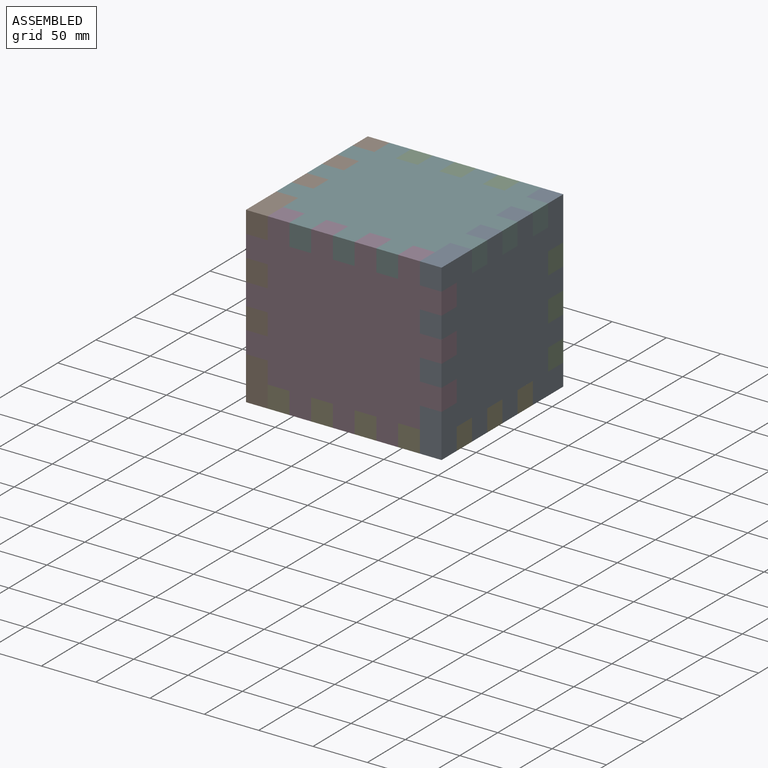
[diagram: assembled view]
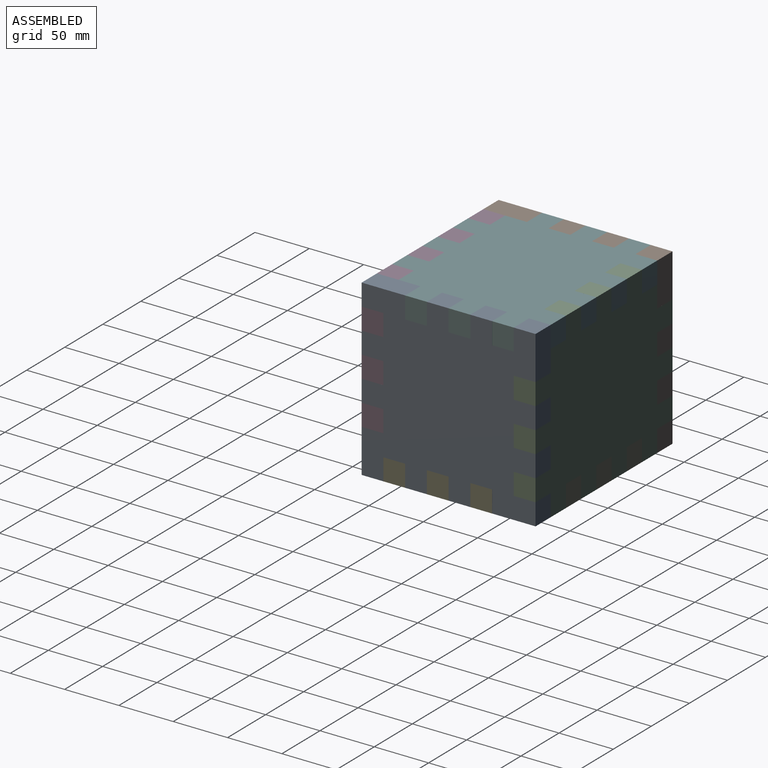
[diagram: assembled view, second angle]
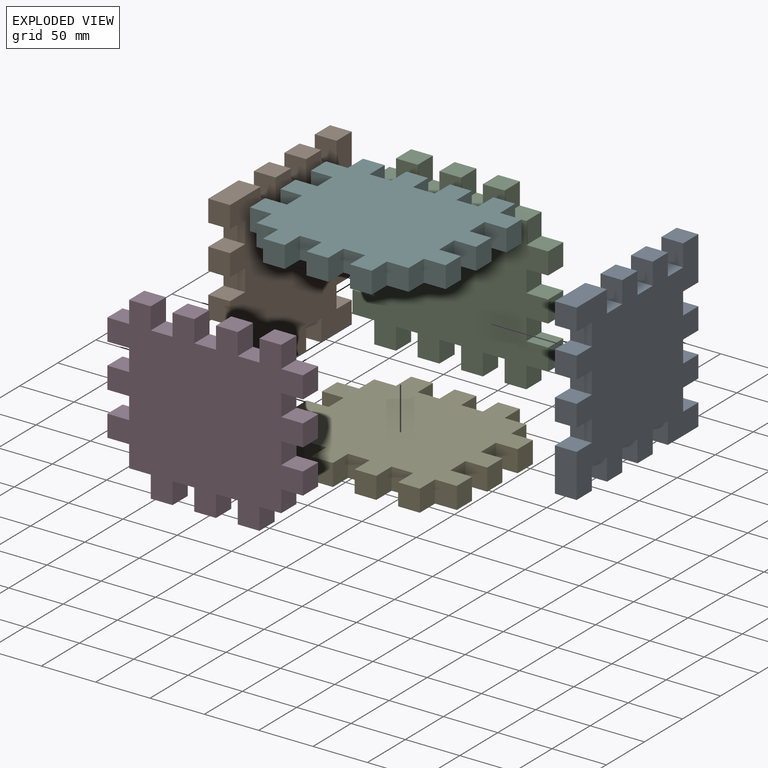
[diagram: exploded view]
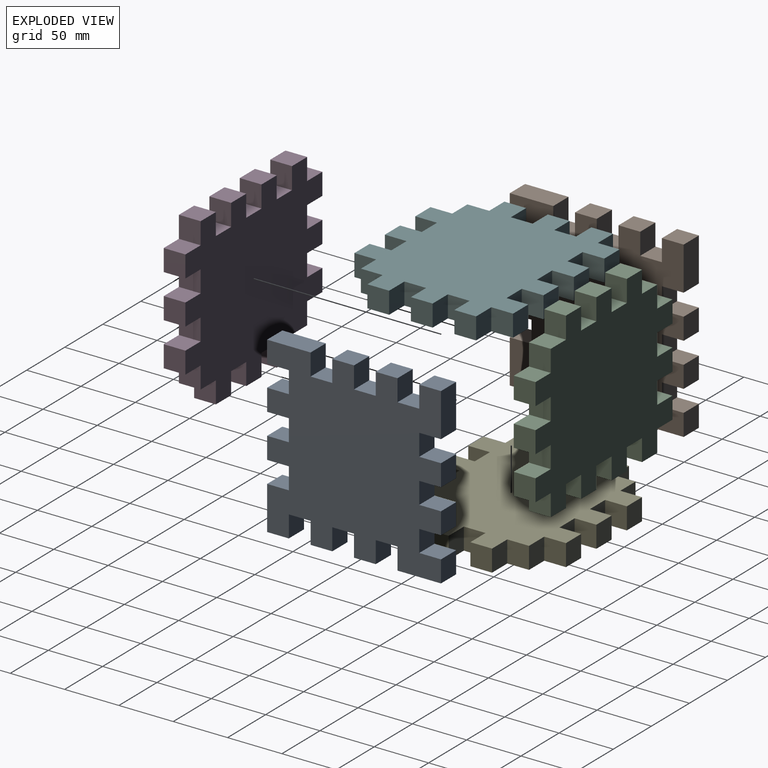
[diagram: exploded view, second angle]
ASSEMBLY  parts=6 mates=5
PART A: 54 faces, bbox 160x160x20 mm
  f0: plane 40x20mm, normal (-1,0,0), area 800mm2, adj f1,f51,f52,f53
  f1: plane 20x20mm, normal (0,-1,0), area 400mm2, adj f0,f2,f52,f53
  f2: plane 20x20mm, normal (1,0,0), area 400mm2, adj f1,f3,f52,f53
  f3: plane 20x20mm, normal (0,-1,0), area 400mm2, adj f2,f4,f52,f53
  f4: plane 20x20mm, normal (-1,0,0), area 400mm2, adj f3,f5,f52,f53
  f5: plane 20x20mm, normal (0,-1,0), area 400mm2, adj f4,f6,f52,f53
  f6: plane 20x20mm, normal (1,0,0), area 400mm2, adj f5,f7,f52,f53
  f7: plane 20x20mm, normal (0,-1,0), area 400mm2, adj f6,f8,f52,f53
  f8: plane 20x20mm, normal (-1,0,0), area 400mm2, adj f7,f9,f52,f53
  f9: plane 20x20mm, normal (0,-1,0), area 400mm2, adj f8,f10,f52,f53
  f10: plane 20x20mm, normal (1,0,0), area 400mm2, adj f9,f11,f52,f53
  f11: plane 20x20mm, normal (0,-1,0), area 400mm2, adj f10,f12,f52,f53
  f12: plane 20x20mm, normal (-1,0,0), area 400mm2, adj f11,f13,f52,f53
  f13: plane 40x20mm, normal (0,-1,0), area 800mm2, adj f12,f14,f52,f53
  f14: plane 20x20mm, normal (1,0,0), area 400mm2, adj f13,f15,f52,f53
  f15: plane 20x20mm, normal (0,1,0), area 400mm2, adj f14,f16,f52,f53
  f16: plane 20x20mm, normal (1,0,0), area 400mm2, adj f15,f17,f52,f53
  f17: plane 20x20mm, normal (0,-1,0), area 400mm2, adj f16,f18,f52,f53
  f18: plane 20x20mm, normal (1,0,0), area 400mm2, adj f17,f19,f52,f53
  f19: plane 20x20mm, normal (0,1,0), area 400mm2, adj f18,f20,f52,f53
  f20: plane 20x20mm, normal (1,0,0), area 400mm2, adj f19,f21,f52,f53
  f21: plane 20x20mm, normal (0,-1,0), area 400mm2, adj f20,f22,f52,f53
  f22: plane 20x20mm, normal (1,0,0), area 400mm2, adj f21,f23,f52,f53
  f23: plane 20x20mm, normal (0,1,0), area 400mm2, adj f22,f24,f52,f53
  f24: plane 20x20mm, normal (1,0,0), area 400mm2, adj f23,f25,f52,f53
  f25: plane 20x20mm, normal (0,-1,0), area 400mm2, adj f24,f26,f52,f53
  f26: plane 40x20mm, normal (1,0,0), area 800mm2, adj f25,f27,f52,f53
  f27: plane 20x20mm, normal (0,1,0), area 400mm2, adj f26,f28,f52,f53
  f28: plane 20x20mm, normal (-1,0,0), area 400mm2, adj f27,f29,f52,f53
  f29: plane 20x20mm, normal (0,1,0), area 400mm2, adj f28,f30,f52,f53
  f30: plane 20x20mm, normal (1,0,0), area 400mm2, adj f29,f31,f52,f53
  f31: plane 20x20mm, normal (0,1,0), area 400mm2, adj f30,f32,f52,f53
  f32: plane 20x20mm, normal (-1,0,0), area 400mm2, adj f31,f33,f52,f53
  f33: plane 20x20mm, normal (0,1,0), area 400mm2, adj f32,f34,f52,f53
  f34: plane 20x20mm, normal (1,0,0), area 400mm2, adj f33,f35,f52,f53
  f35: plane 20x20mm, normal (0,1,0), area 400mm2, adj f34,f36,f52,f53
  f36: plane 20x20mm, normal (-1,0,0), area 400mm2, adj f35,f37,f52,f53
  f37: plane 20x20mm, normal (0,1,0), area 400mm2, adj f36,f38,f52,f53
  f38: plane 20x20mm, normal (1,0,0), area 400mm2, adj f37,f39,f52,f53
  f39: plane 40x20mm, normal (0,1,0), area 800mm2, adj f38,f40,f52,f53
  f40: plane 20x20mm, normal (-1,0,0), area 400mm2, adj f39,f41,f52,f53
  f41: plane 20x20mm, normal (0,-1,0), area 400mm2, adj f40,f42,f52,f53
  f42: plane 20x20mm, normal (-1,0,0), area 400mm2, adj f41,f43,f52,f53
  f43: plane 20x20mm, normal (0,1,0), area 400mm2, adj f42,f44,f52,f53
  f44: plane 20x20mm, normal (-1,0,0), area 400mm2, adj f43,f45,f52,f53
  f45: plane 20x20mm, normal (0,-1,0), area 400mm2, adj f44,f46,f52,f53
  f46: plane 20x20mm, normal (-1,0,0), area 400mm2, adj f45,f47,f52,f53
  f47: plane 20x20mm, normal (0,1,0), area 400mm2, adj f46,f48,f52,f53
  f48: plane 20x20mm, normal (-1,0,0), area 400mm2, adj f47,f49,f52,f53
  f49: plane 20x20mm, normal (0,-1,0), area 400mm2, adj f48,f50,f52,f53
  f50: plane 20x20mm, normal (-1,0,0), area 400mm2, adj f49,f51,f52,f53
  f51: plane 20x20mm, normal (0,1,0), area 400mm2, adj f0,f50,f52,f53
  f52: plane 160x160mm, normal (0,0,1), area 20800mm2, adj f0,f1,f2,f3,f4,f5,f6,f7
  f53: plane 160x160mm, normal (0,0,-1), area 20800mm2, adj f0,f1,f2,f3,f4,f5,f6,f7
PART B: same geometry as A
PART C: 54 faces, bbox 180x160x20 mm
  f0: plane 20x20mm, normal (1,0,0), area 400mm2, adj f1,f51,f52,f53
  f1: plane 20x20mm, normal (0,1,0), area 400mm2, adj f0,f2,f52,f53
  f2: plane 20x20mm, normal (-1,0,0), area 400mm2, adj f1,f3,f52,f53
  f3: plane 20x20mm, normal (0,1,0), area 400mm2, adj f2,f4,f52,f53
  f4: plane 20x20mm, normal (-1,0,0), area 400mm2, adj f3,f5,f52,f53
  f5: plane 20x20mm, normal (0,-1,0), area 400mm2, adj f4,f6,f52,f53
  f6: plane 20x20mm, normal (-1,0,0), area 400mm2, adj f5,f7,f52,f53
  f7: plane 20x20mm, normal (0,1,0), area 400mm2, adj f6,f8,f52,f53
  f8: plane 20x20mm, normal (-1,0,0), area 400mm2, adj f7,f9,f52,f53
  f9: plane 20x20mm, normal (0,-1,0), area 400mm2, adj f8,f10,f52,f53
  f10: plane 20x20mm, normal (-1,0,0), area 400mm2, adj f9,f11,f52,f53
  f11: plane 20x20mm, normal (0,1,0), area 400mm2, adj f10,f12,f52,f53
  f12: plane 20x20mm, normal (-1,0,0), area 400mm2, adj f11,f13,f52,f53
  f13: plane 20x20mm, normal (0,-1,0), area 400mm2, adj f12,f14,f52,f53
  f14: plane 20x20mm, normal (-1,0,0), area 400mm2, adj f13,f15,f52,f53
  f15: plane 20x20mm, normal (0,-1,0), area 400mm2, adj f14,f16,f52,f53
  f16: plane 20x20mm, normal (-1,0,0), area 400mm2, adj f15,f17,f52,f53
  f17: plane 20x20mm, normal (0,-1,0), area 400mm2, adj f16,f18,f52,f53
  f18: plane 20x20mm, normal (1,0,0), area 400mm2, adj f17,f19,f52,f53
  f19: plane 20x20mm, normal (0,-1,0), area 400mm2, adj f18,f20,f52,f53
  f20: plane 20x20mm, normal (-1,0,0), area 400mm2, adj f19,f21,f52,f53
  f21: plane 20x20mm, normal (0,-1,0), area 400mm2, adj f20,f22,f52,f53
  f22: plane 20x20mm, normal (1,0,0), area 400mm2, adj f21,f23,f52,f53
  f23: plane 20x20mm, normal (0,-1,0), area 400mm2, adj f22,f24,f52,f53
  f24: plane 20x20mm, normal (-1,0,0), area 400mm2, adj f23,f25,f52,f53
  f25: plane 20x20mm, normal (0,-1,0), area 400mm2, adj f24,f26,f52,f53
  f26: plane 20x20mm, normal (1,0,0), area 400mm2, adj f25,f27,f52,f53
  f27: plane 20x20mm, normal (0,-1,0), area 400mm2, adj f26,f28,f52,f53
  f28: plane 20x20mm, normal (1,0,0), area 400mm2, adj f27,f29,f52,f53
  f29: plane 20x20mm, normal (0,-1,0), area 400mm2, adj f28,f30,f52,f53
  f30: plane 20x20mm, normal (1,0,0), area 400mm2, adj f29,f31,f52,f53
  f31: plane 20x20mm, normal (0,1,0), area 400mm2, adj f30,f32,f52,f53
  f32: plane 20x20mm, normal (1,0,0), area 400mm2, adj f31,f33,f52,f53
  f33: plane 20x20mm, normal (0,-1,0), area 400mm2, adj f32,f34,f52,f53
  f34: plane 20x20mm, normal (1,0,0), area 400mm2, adj f33,f35,f52,f53
  f35: plane 20x20mm, normal (0,1,0), area 400mm2, adj f34,f36,f52,f53
  f36: plane 20x20mm, normal (1,0,0), area 400mm2, adj f35,f37,f52,f53
  f37: plane 20x20mm, normal (0,-1,0), area 400mm2, adj f36,f38,f52,f53
  f38: plane 20x20mm, normal (1,0,0), area 400mm2, adj f37,f39,f52,f53
  f39: plane 20x20mm, normal (0,1,0), area 400mm2, adj f38,f40,f52,f53
  f40: plane 20x20mm, normal (1,0,0), area 400mm2, adj f39,f41,f52,f53
  f41: plane 20x20mm, normal (0,1,0), area 400mm2, adj f40,f42,f52,f53
  f42: plane 20x20mm, normal (-1,0,0), area 400mm2, adj f41,f43,f52,f53
  f43: plane 20x20mm, normal (0,1,0), area 400mm2, adj f42,f44,f52,f53
  f44: plane 20x20mm, normal (1,0,0), area 400mm2, adj f43,f45,f52,f53
  f45: plane 20x20mm, normal (0,1,0), area 400mm2, adj f44,f46,f52,f53
  f46: plane 20x20mm, normal (-1,0,0), area 400mm2, adj f45,f47,f52,f53
  f47: plane 20x20mm, normal (0,1,0), area 400mm2, adj f46,f48,f52,f53
  f48: plane 20x20mm, normal (1,0,0), area 400mm2, adj f47,f49,f52,f53
  f49: plane 20x20mm, normal (0,1,0), area 400mm2, adj f48,f50,f52,f53
  f50: plane 20x20mm, normal (-1,0,0), area 400mm2, adj f49,f51,f52,f53
  f51: plane 20x20mm, normal (0,1,0), area 400mm2, adj f0,f50,f52,f53
  f52: plane 180x160mm, normal (0,0,1), area 22000mm2, adj f0,f1,f2,f3,f4,f5,f6,f7
  f53: plane 180x160mm, normal (0,0,-1), area 22000mm2, adj f0,f1,f2,f3,f4,f5,f6,f7
PART D: same geometry as C
PART E: same geometry as C
PART F: same geometry as C
PLACE A rot(axis=(0,1,0),90deg) t=(82.27,-20.04,214.43)mm
PLACE B rot(axis=(-0.58,0.58,-0.58),120deg) t=(-77.73,139.96,214.43)mm
PLACE C rot(axis=(-1,0,0),90deg) t=(-77.73,119.96,214.43)mm
PLACE D rot(axis=(1,0,0),90deg) t=(-77.73,-0.04,54.43)mm
PLACE E rot(axis=(1,0,0),180deg) t=(-77.73,139.96,74.43)mm
PLACE F t=(-77.73,-20.04,194.43)mm
MATE slider E.f53 <-> C.f51  axis (0,0,1) through (-37.73,139.96,74.43)mm
MATE slider B.f52 <-> C.f2  axis (1,0,0) through (-57.73,139.96,54.43)mm
MATE slider D.f53 <-> F.f15  axis (0,1,0) through (-57.73,-0.04,214.43)mm
MATE slider C.f53 <-> F.f43  axis (0,-1,0) through (62.27,119.96,214.43)mm
MATE slider A.f53 <-> F.f40  axis (-1,0,0) through (82.27,139.96,214.43)mm
